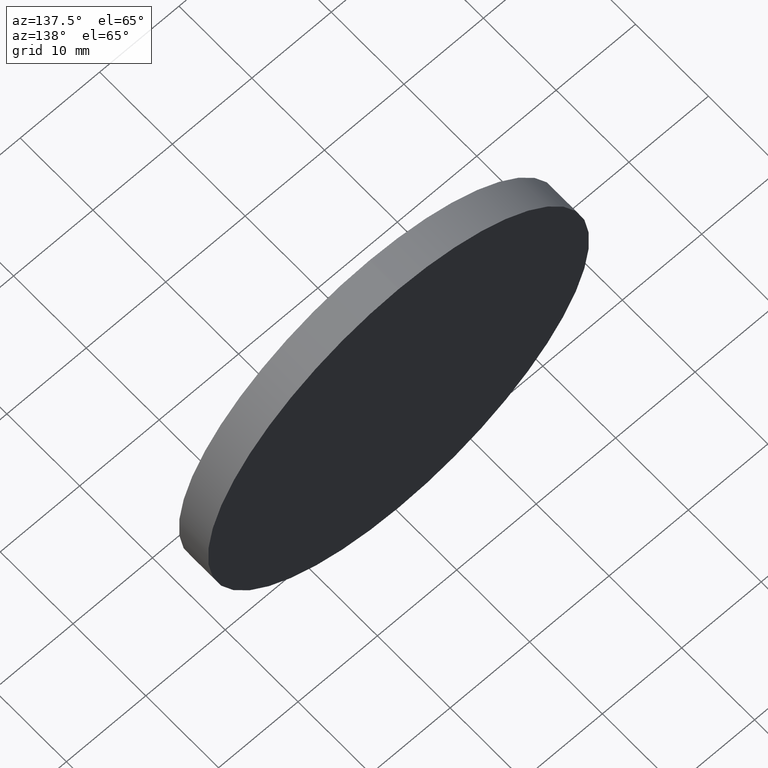
[diagram: clean part render]
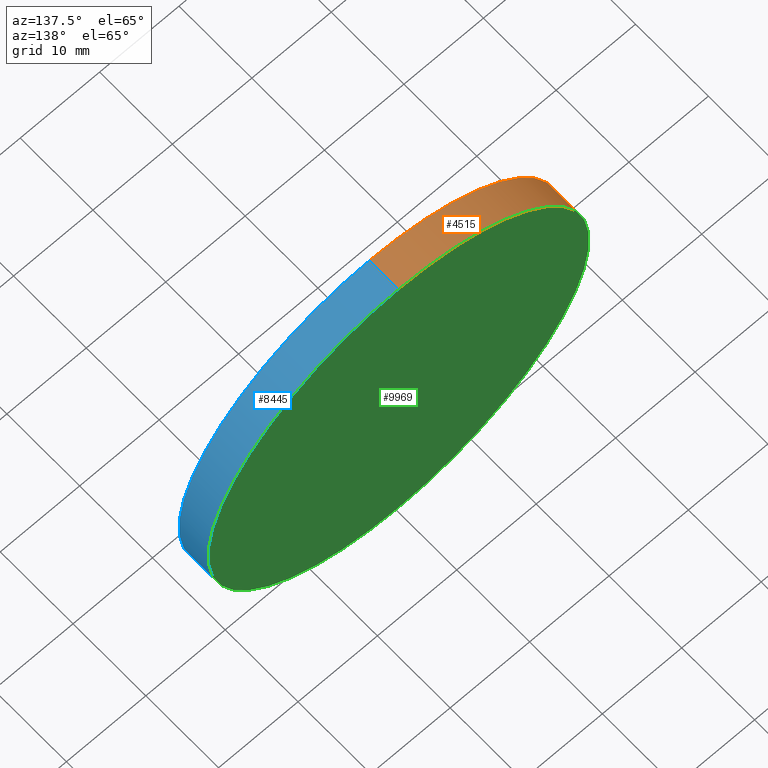
[diagram: same view with three faces highlighted in distinct colors, each labeled with its STEP entity id]
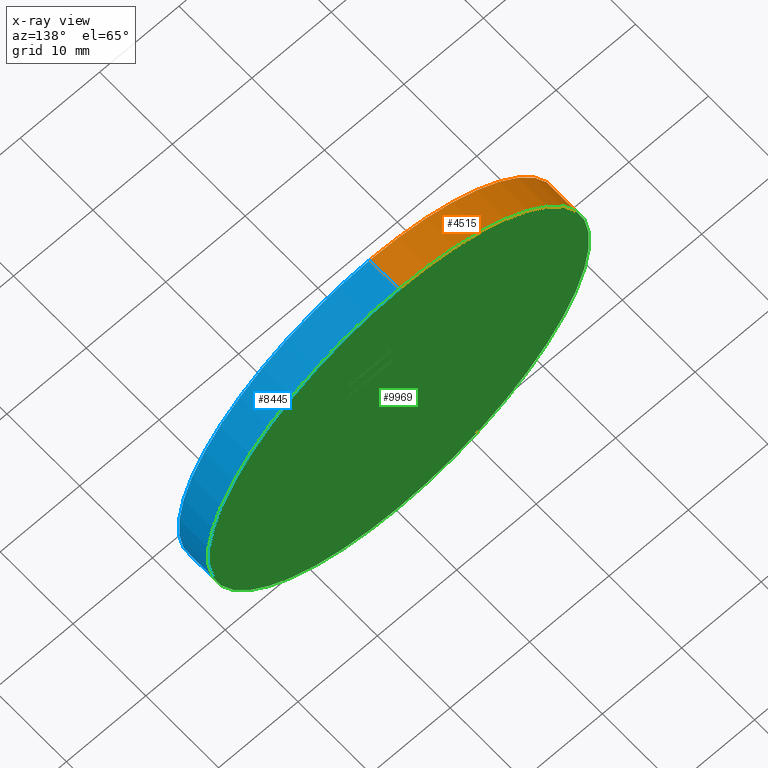
[diagram: x-ray of the same camera — body ghosted, the three highlighted faces saturated]
A machine part, auxiliary view with three faces highlighted in distinct colors.
The next image is the same camera in x-ray (body ghosted, the three faces saturated) — at least one of them is partly hidden behind the body in this view.
Their STEP definitions:

[orange] entity #4515 — the highlighted cylindrical surface (partial cylindrical patch) has radius 24 mm, axis along (-0, -1, -0).
#131 = LINE ( 'NONE', #7186, #10187 ) ;
#1367 = CARTESIAN_POINT ( 'NONE',  ( 0.000000000000000000, 2.000000000000000000, 0.000000000000000000 ) ) ;
#2001 = VERTEX_POINT ( 'NONE', #5311 ) ;
#2175 = ORIENTED_EDGE ( 'NONE', *, *, #7713, .F. ) ;
#2289 = DIRECTION ( 'NONE',  ( -0.000000000000000000, -1.000000000000000000, -0.000000000000000000 ) ) ;
#2921 = DIRECTION ( 'NONE',  ( 0.000000000000000000, 1.000000000000000000, 0.000000000000000000 ) ) ;
#3319 = DIRECTION ( 'NONE',  ( 0.000000000000000000, 0.000000000000000000, -1.000000000000000000 ) ) ;
#3489 = AXIS2_PLACEMENT_3D ( 'NONE', #11765, #9970, #3319 ) ;
#4515 = ADVANCED_FACE ( 'NONE', ( #11545 ), #5875, .T. ) ;
#4931 = VECTOR ( 'NONE', #6614, 1000.000000000000000 ) ;
#4969 = EDGE_CURVE ( 'NONE', #2001, #4973, #131, .T. ) ;
#4973 = VERTEX_POINT ( 'NONE', #7233 ) ;
#5311 = CARTESIAN_POINT ( 'NONE',  ( 0.000000000000000000, 2.000000000000000000, -24.00000000000000355 ) ) ;
#5434 = CARTESIAN_POINT ( 'NONE',  ( 2.939152317953648289E-15, -2.000000000000000000, 24.00000000000000355 ) ) ;
#5875 = CYLINDRICAL_SURFACE ( 'NONE', #3489, 24.00000000000000355 ) ;
#5947 = EDGE_LOOP ( 'NONE', ( #7716, #2175, #10057, #11413 ) ) ;
#6244 = EDGE_CURVE ( 'NONE', #9106, #6987, #7945, .T. ) ;
#6614 = DIRECTION ( 'NONE',  ( -0.000000000000000000, -1.000000000000000000, -0.000000000000000000 ) ) ;
#6987 = VERTEX_POINT ( 'NONE', #5434 ) ;
#7186 = CARTESIAN_POINT ( 'NONE',  ( 0.000000000000000000, 2.000000000000000000, -24.00000000000000355 ) ) ;
#7233 = CARTESIAN_POINT ( 'NONE',  ( 0.000000000000000000, -2.000000000000000000, -24.00000000000000355 ) ) ;
#7713 = EDGE_CURVE ( 'NONE', #2001, #9106, #9457, .T. ) ;
#7716 = ORIENTED_EDGE ( 'NONE', *, *, #6244, .F. ) ;
#7945 = LINE ( 'NONE', #9532, #4931 ) ;
#8090 = CIRCLE ( 'NONE', #10644, 24.00000000000000355 ) ;
#8118 = DIRECTION ( 'NONE',  ( 0.000000000000000000, 1.000000000000000000, 0.000000000000000000 ) ) ;
#8701 = CARTESIAN_POINT ( 'NONE',  ( 0.000000000000000000, -2.000000000000000000, 0.000000000000000000 ) ) ;
#9065 = DIRECTION ( 'NONE',  ( 0.000000000000000000, 0.000000000000000000, 1.000000000000000000 ) ) ;
#9106 = VERTEX_POINT ( 'NONE', #10614 ) ;
#9281 = AXIS2_PLACEMENT_3D ( 'NONE', #1367, #8118, #9065 ) ;
#9457 = CIRCLE ( 'NONE', #9281, 24.00000000000000355 ) ;
#9532 = CARTESIAN_POINT ( 'NONE',  ( 2.939152317953648289E-15, 2.000000000000000000, 24.00000000000000355 ) ) ;
#9970 = DIRECTION ( 'NONE',  ( -0.000000000000000000, -1.000000000000000000, -0.000000000000000000 ) ) ;
#10053 = EDGE_CURVE ( 'NONE', #4973, #6987, #8090, .T. ) ;
#10057 = ORIENTED_EDGE ( 'NONE', *, *, #4969, .T. ) ;
#10187 = VECTOR ( 'NONE', #2289, 1000.000000000000000 ) ;
#10614 = CARTESIAN_POINT ( 'NONE',  ( 2.939152317953648289E-15, 2.000000000000000000, 24.00000000000000355 ) ) ;
#10644 = AXIS2_PLACEMENT_3D ( 'NONE', #8701, #2921, #12213 ) ;
#11413 = ORIENTED_EDGE ( 'NONE', *, *, #10053, .T. ) ;
#11545 = FACE_OUTER_BOUND ( 'NONE', #5947, .T. ) ;
#11765 = CARTESIAN_POINT ( 'NONE',  ( 0.000000000000000000, 2.000000000000000000, 0.000000000000000000 ) ) ;
#12213 = DIRECTION ( 'NONE',  ( 0.000000000000000000, 0.000000000000000000, 1.000000000000000000 ) ) ;

[blue] entity #8445 — the highlighted cylindrical surface (partial cylindrical patch) has radius 24 mm, axis along (-0, -1, -0).
#131 = LINE ( 'NONE', #7186, #10187 ) ;
#518 = AXIS2_PLACEMENT_3D ( 'NONE', #3901, #6844, #4862 ) ;
#1830 = EDGE_CURVE ( 'NONE', #6987, #4973, #8904, .T. ) ;
#2001 = VERTEX_POINT ( 'NONE', #5311 ) ;
#2289 = DIRECTION ( 'NONE',  ( -0.000000000000000000, -1.000000000000000000, -0.000000000000000000 ) ) ;
#2349 = CIRCLE ( 'NONE', #2702, 24.00000000000000355 ) ;
#2702 = AXIS2_PLACEMENT_3D ( 'NONE', #3040, #10700, #5159 ) ;
#2863 = DIRECTION ( 'NONE',  ( 0.000000000000000000, 1.000000000000000000, 0.000000000000000000 ) ) ;
#3040 = CARTESIAN_POINT ( 'NONE',  ( 0.000000000000000000, 2.000000000000000000, 0.000000000000000000 ) ) ;
#3116 = FACE_OUTER_BOUND ( 'NONE', #5194, .T. ) ;
#3901 = CARTESIAN_POINT ( 'NONE',  ( 0.000000000000000000, 2.000000000000000000, 0.000000000000000000 ) ) ;
#4742 = ORIENTED_EDGE ( 'NONE', *, *, #1830, .T. ) ;
#4862 = DIRECTION ( 'NONE',  ( 0.000000000000000000, 0.000000000000000000, -1.000000000000000000 ) ) ;
#4931 = VECTOR ( 'NONE', #6614, 1000.000000000000000 ) ;
#4969 = EDGE_CURVE ( 'NONE', #2001, #4973, #131, .T. ) ;
#4973 = VERTEX_POINT ( 'NONE', #7233 ) ;
#5159 = DIRECTION ( 'NONE',  ( 0.000000000000000000, 0.000000000000000000, 1.000000000000000000 ) ) ;
#5194 = EDGE_LOOP ( 'NONE', ( #8171, #5670, #4742, #6649 ) ) ;
#5311 = CARTESIAN_POINT ( 'NONE',  ( 0.000000000000000000, 2.000000000000000000, -24.00000000000000355 ) ) ;
#5434 = CARTESIAN_POINT ( 'NONE',  ( 2.939152317953648289E-15, -2.000000000000000000, 24.00000000000000355 ) ) ;
#5670 = ORIENTED_EDGE ( 'NONE', *, *, #6244, .T. ) ;
#6244 = EDGE_CURVE ( 'NONE', #9106, #6987, #7945, .T. ) ;
#6614 = DIRECTION ( 'NONE',  ( -0.000000000000000000, -1.000000000000000000, -0.000000000000000000 ) ) ;
#6649 = ORIENTED_EDGE ( 'NONE', *, *, #4969, .F. ) ;
#6844 = DIRECTION ( 'NONE',  ( -0.000000000000000000, -1.000000000000000000, -0.000000000000000000 ) ) ;
#6987 = VERTEX_POINT ( 'NONE', #5434 ) ;
#7186 = CARTESIAN_POINT ( 'NONE',  ( 0.000000000000000000, 2.000000000000000000, -24.00000000000000355 ) ) ;
#7233 = CARTESIAN_POINT ( 'NONE',  ( 0.000000000000000000, -2.000000000000000000, -24.00000000000000355 ) ) ;
#7695 = AXIS2_PLACEMENT_3D ( 'NONE', #7873, #2863, #11477 ) ;
#7873 = CARTESIAN_POINT ( 'NONE',  ( 0.000000000000000000, -2.000000000000000000, 0.000000000000000000 ) ) ;
#7945 = LINE ( 'NONE', #9532, #4931 ) ;
#8171 = ORIENTED_EDGE ( 'NONE', *, *, #8772, .F. ) ;
#8445 = ADVANCED_FACE ( 'NONE', ( #3116 ), #11214, .T. ) ;
#8772 = EDGE_CURVE ( 'NONE', #9106, #2001, #2349, .T. ) ;
#8904 = CIRCLE ( 'NONE', #7695, 24.00000000000000355 ) ;
#9106 = VERTEX_POINT ( 'NONE', #10614 ) ;
#9532 = CARTESIAN_POINT ( 'NONE',  ( 2.939152317953648289E-15, 2.000000000000000000, 24.00000000000000355 ) ) ;
#10187 = VECTOR ( 'NONE', #2289, 1000.000000000000000 ) ;
#10614 = CARTESIAN_POINT ( 'NONE',  ( 2.939152317953648289E-15, 2.000000000000000000, 24.00000000000000355 ) ) ;
#10700 = DIRECTION ( 'NONE',  ( 0.000000000000000000, 1.000000000000000000, 0.000000000000000000 ) ) ;
#11214 = CYLINDRICAL_SURFACE ( 'NONE', #518, 24.00000000000000355 ) ;
#11477 = DIRECTION ( 'NONE',  ( 0.000000000000000000, 0.000000000000000000, 1.000000000000000000 ) ) ;

[green] entity #9969 — the highlighted planar face has unit normal (0, 1, 0).
#9 = EDGE_LOOP ( 'NONE', ( #4140, #2617 ) ) ;
#596 = AXIS2_PLACEMENT_3D ( 'NONE', #4652, #3930, #9638 ) ;
#1367 = CARTESIAN_POINT ( 'NONE',  ( 0.000000000000000000, 2.000000000000000000, 0.000000000000000000 ) ) ;
#2001 = VERTEX_POINT ( 'NONE', #5311 ) ;
#2349 = CIRCLE ( 'NONE', #2702, 24.00000000000000355 ) ;
#2617 = ORIENTED_EDGE ( 'NONE', *, *, #8772, .T. ) ;
#2702 = AXIS2_PLACEMENT_3D ( 'NONE', #3040, #10700, #5159 ) ;
#3040 = CARTESIAN_POINT ( 'NONE',  ( 0.000000000000000000, 2.000000000000000000, 0.000000000000000000 ) ) ;
#3930 = DIRECTION ( 'NONE',  ( 0.000000000000000000, 1.000000000000000000, 0.000000000000000000 ) ) ;
#4140 = ORIENTED_EDGE ( 'NONE', *, *, #7713, .T. ) ;
#4652 = CARTESIAN_POINT ( 'NONE',  ( 0.000000000000000000, 2.000000000000000000, 0.000000000000000000 ) ) ;
#4778 = FACE_OUTER_BOUND ( 'NONE', #9, .T. ) ;
#5159 = DIRECTION ( 'NONE',  ( 0.000000000000000000, 0.000000000000000000, 1.000000000000000000 ) ) ;
#5311 = CARTESIAN_POINT ( 'NONE',  ( 0.000000000000000000, 2.000000000000000000, -24.00000000000000355 ) ) ;
#7713 = EDGE_CURVE ( 'NONE', #2001, #9106, #9457, .T. ) ;
#8118 = DIRECTION ( 'NONE',  ( 0.000000000000000000, 1.000000000000000000, 0.000000000000000000 ) ) ;
#8772 = EDGE_CURVE ( 'NONE', #9106, #2001, #2349, .T. ) ;
#9065 = DIRECTION ( 'NONE',  ( 0.000000000000000000, 0.000000000000000000, 1.000000000000000000 ) ) ;
#9106 = VERTEX_POINT ( 'NONE', #10614 ) ;
#9281 = AXIS2_PLACEMENT_3D ( 'NONE', #1367, #8118, #9065 ) ;
#9457 = CIRCLE ( 'NONE', #9281, 24.00000000000000355 ) ;
#9638 = DIRECTION ( 'NONE',  ( 0.000000000000000000, -0.000000000000000000, 1.000000000000000000 ) ) ;
#9969 = ADVANCED_FACE ( 'NONE', ( #4778 ), #10376, .T. ) ;
#10376 = PLANE ( 'NONE',  #596 ) ;
#10614 = CARTESIAN_POINT ( 'NONE',  ( 2.939152317953648289E-15, 2.000000000000000000, 24.00000000000000355 ) ) ;
#10700 = DIRECTION ( 'NONE',  ( 0.000000000000000000, 1.000000000000000000, 0.000000000000000000 ) ) ;